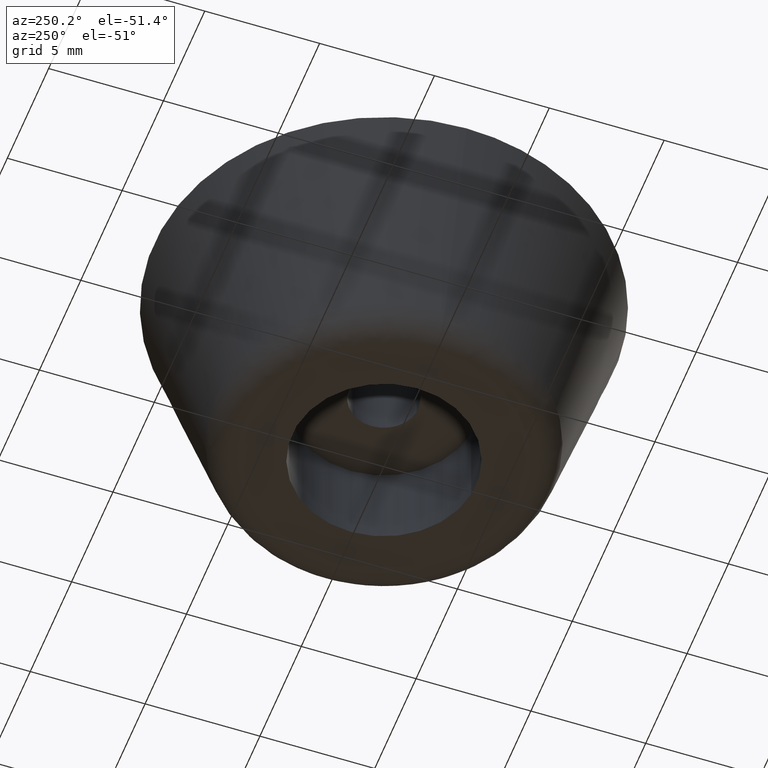
[diagram: clean part render]
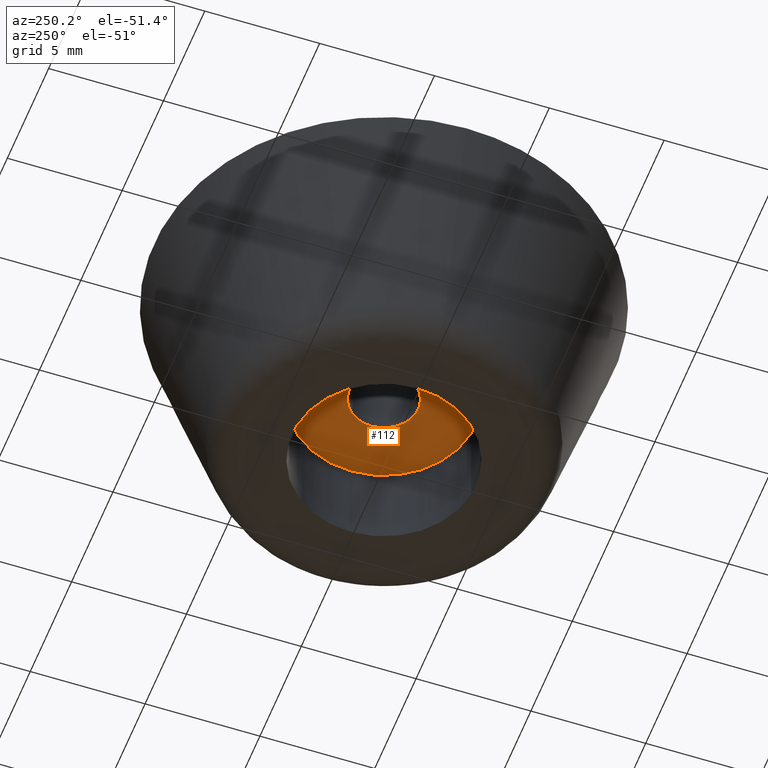
[diagram: same view with one face highlighted and labeled with its STEP entity id]
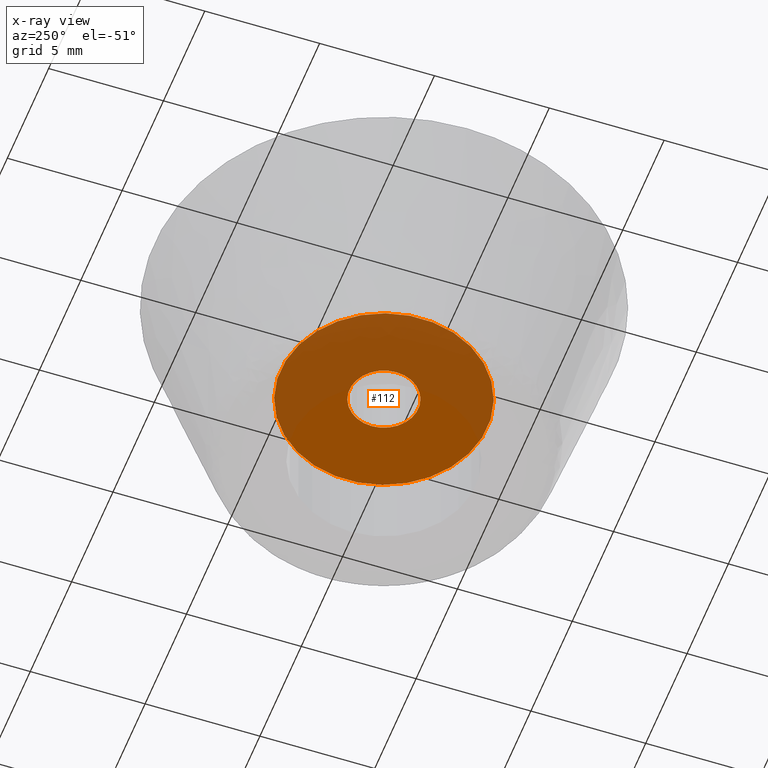
[diagram: x-ray of the same camera — body ghosted, the highlighted face saturated]
A machine part, auxiliary view. The second image highlights one B-rep face of the part: STEP entity #112.
The next image is the same camera in x-ray: the body ghosted, the highlighted face saturated — about 57% of this face is hidden behind the body in this view.
In plain terms, the highlighted planar face has unit normal (0, 0, 1).
Its self-contained STEP definition (entity closure, byte-faithful):
#112=ADVANCED_FACE('',(#133,#134),#132,.F.);
#132=PLANE('',#341);
#133=FACE_OUTER_BOUND('',#342,.T.);
#134=FACE_BOUND('',#343,.T.);
#338=CARTESIAN_POINT('',(-8.75654082124E+000,-6.82108599998E+000,4.00000000000E+000));
#339=DIRECTION('',(0.00000000000E+000,0.00000000000E+000,1.00000000000E+000));
#340=DIRECTION('',(1.00000000000E+000,0.00000000000E+000,0.00000000000E+000));
#341=AXIS2_PLACEMENT_3D('',#338,#339,#340);
#342=EDGE_LOOP('',(#498,#499));
#343=EDGE_LOOP('',(#500,#501));
#498=ORIENTED_EDGE('',*,*,#582,.T.);
#499=ORIENTED_EDGE('',*,*,#583,.T.);
#500=ORIENTED_EDGE('',*,*,#584,.F.);
#501=ORIENTED_EDGE('',*,*,#585,.F.);
#582=EDGE_CURVE('',#624,#625,#626,.T.);
#583=EDGE_CURVE('',#625,#624,#632,.T.);
#584=EDGE_CURVE('',#638,#639,#640,.T.);
#585=EDGE_CURVE('',#639,#638,#646,.T.);
#624=VERTEX_POINT('',#904);
#625=VERTEX_POINT('',#905);
#626=CIRCLE('',#909,4.49999999999E+000);
#632=CIRCLE('',#913,4.49999999999E+000);
#638=VERTEX_POINT('',#914);
#639=VERTEX_POINT('',#915);
#640=CIRCLE('',#919,1.50000000000E+000);
#646=CIRCLE('',#923,1.50000000000E+000);
#904=CARTESIAN_POINT('',(5.31151701545E-001,-4.46854314848E+000,4.00000000000E+000));
#905=CARTESIAN_POINT('',(-5.31151702857E-001,4.46854314833E+000,4.00000000000E+000));
#906=CARTESIAN_POINT('',(6.67133015497E-012,3.03046476802E-012,4.00000000000E+000));
#907=DIRECTION('',(-1.07706436362E-012,-1.60820900748E-013,-1.00000000000E+000));
#908=DIRECTION('',(1.18033711453E-001,-9.93009588554E-001,3.25667921701E-014));
#909=AXIS2_PLACEMENT_3D('',#906,#907,#908);
#910=CARTESIAN_POINT('',(6.67133015497E-012,3.03046476802E-012,4.00000000000E+000));
#911=DIRECTION('',(-1.07706436362E-012,-1.60820900748E-013,-1.00000000000E+000));
#912=DIRECTION('',(1.18033711453E-001,-9.93009588554E-001,3.25667921701E-014));
#913=AXIS2_PLACEMENT_3D('',#910,#911,#912);
#914=CARTESIAN_POINT('',(1.77308843490E-001,-1.48948366021E+000,4.00000000000E+000));
#915=CARTESIAN_POINT('',(-1.77308843490E-001,1.48948366021E+000,4.00000000000E+000));
#916=CARTESIAN_POINT('',(1.22124532709E-015,6.66133814775E-016,4.00000000000E+000));
#917=DIRECTION('',(2.39064581673E-015,2.84163607117E-016,-1.00000000000E+000));
#918=DIRECTION('',(-1.18205895660E-001,9.92989106804E-001,-4.17063554186E-019));
#919=AXIS2_PLACEMENT_3D('',#916,#917,#918);
#920=CARTESIAN_POINT('',(1.22124532709E-015,6.66133814775E-016,4.00000000000E+000));
#921=DIRECTION('',(2.39064581673E-015,2.84163607117E-016,-1.00000000000E+000));
#922=DIRECTION('',(-1.18205895660E-001,9.92989106804E-001,-4.17063554186E-019));
#923=AXIS2_PLACEMENT_3D('',#920,#921,#922);